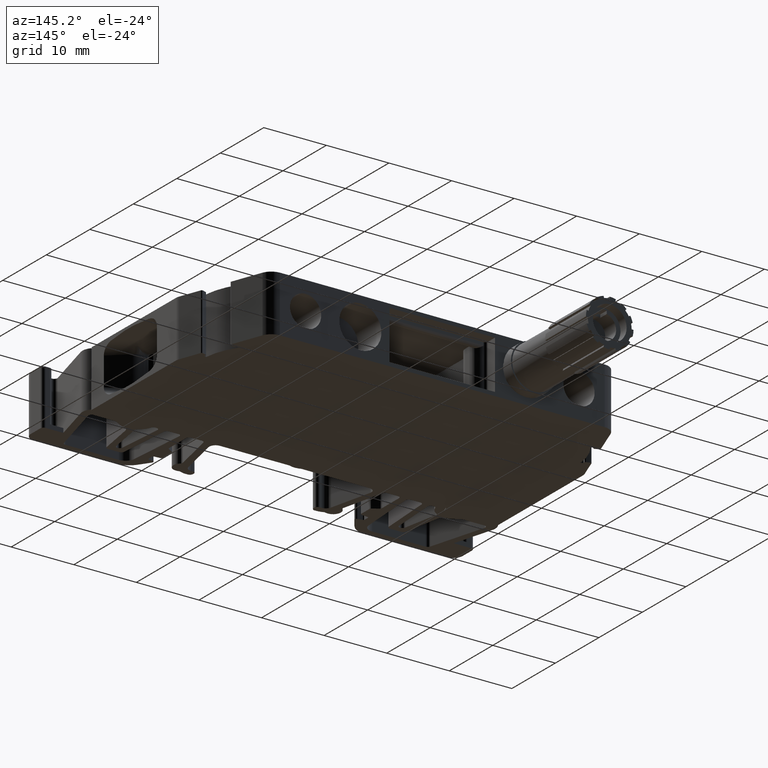
[diagram: clean part render]
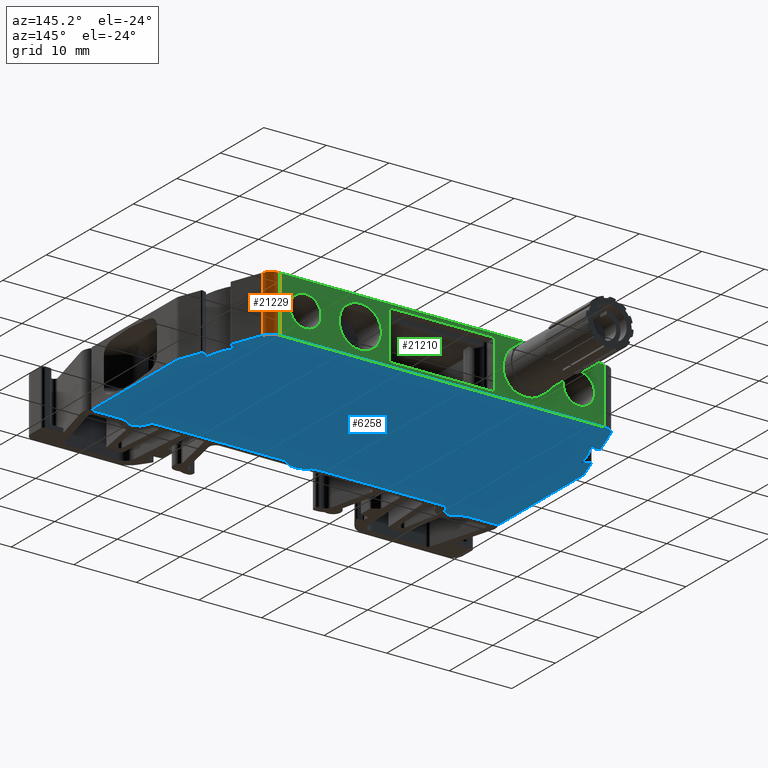
[diagram: same view with three faces highlighted in distinct colors, each labeled with its STEP entity id]
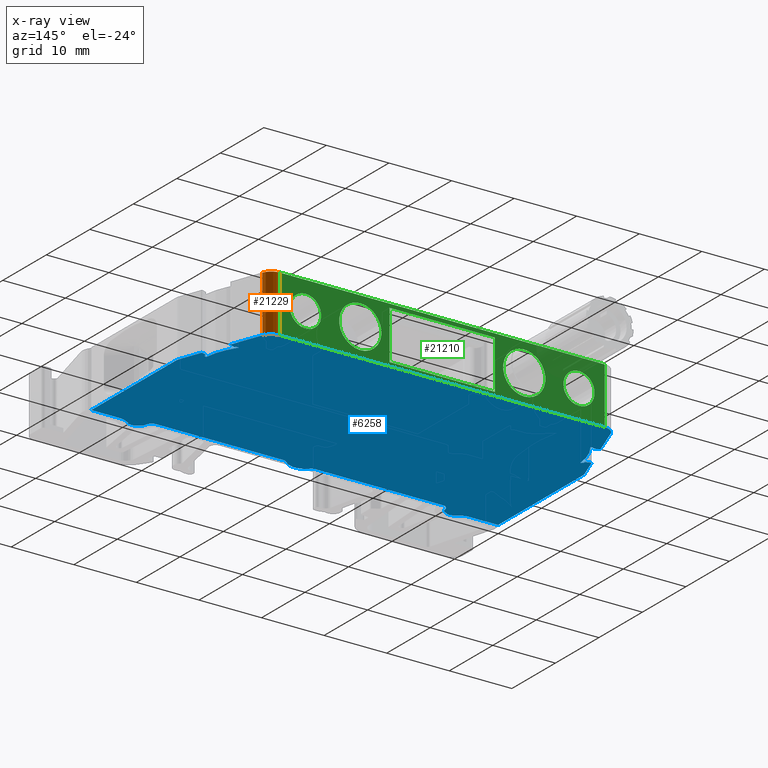
[diagram: x-ray of the same camera — body ghosted, the three highlighted faces saturated]
A machine part, auxiliary view with three faces highlighted in distinct colors.
The next image is the same camera in x-ray (body ghosted, the three faces saturated) — at least one of them is partly hidden behind the body in this view.
Their STEP definitions:

[orange] entity #21229 — the highlighted cylindrical surface (edge-blend (fillet) strip) has radius 2 mm, axis along (0, 0, 1).
#1344 = CIRCLE ( 'NONE', #1376, 1.999999999999724200 ) ;
#1376 = AXIS2_PLACEMENT_3D ( 'NONE', #12688, #12691, #12699 ) ;
#2046 = VECTOR ( 'NONE', #14994, 1000.000000000000000 ) ;
#2064 = VECTOR ( 'NONE', #14911, 1000.000000000000000 ) ;
#2979 = CIRCLE ( 'NONE', #3047, 1.999999999999724200 ) ;
#3047 = AXIS2_PLACEMENT_3D ( 'NONE', #11361, #11340, #11364 ) ;
#5365 = EDGE_LOOP ( 'NONE', ( #8138, #8134, #8133, #8155 ) ) ;
#5887 = AXIS2_PLACEMENT_3D ( 'NONE', #11031, #11057, #11058 ) ;
#7069 = EDGE_CURVE ( 'NONE', #8944, #8972, #2979, .T. ) ;
#7204 = EDGE_CURVE ( 'NONE', #8297, #8317, #1344, .T. ) ;
#7834 = EDGE_CURVE ( 'NONE', #8972, #8297, #14924, .T. ) ;
#7839 = EDGE_CURVE ( 'NONE', #8944, #8317, #14913, .T. ) ;
#8133 = ORIENTED_EDGE ( 'NONE', *, *, #7204, .T. ) ;
#8134 = ORIENTED_EDGE ( 'NONE', *, *, #7834, .T. ) ;
#8138 = ORIENTED_EDGE ( 'NONE', *, *, #7069, .T. ) ;
#8155 = ORIENTED_EDGE ( 'NONE', *, *, #7839, .F. ) ;
#8297 = VERTEX_POINT ( 'NONE', #12295 ) ;
#8317 = VERTEX_POINT ( 'NONE', #12406 ) ;
#8944 = VERTEX_POINT ( 'NONE', #13890 ) ;
#8972 = VERTEX_POINT ( 'NONE', #14081 ) ;
#11022 = CYLINDRICAL_SURFACE ( 'NONE', #5887, 1.999999999999724200 ) ;
#11031 = CARTESIAN_POINT ( 'NONE',  ( 498.1671904468869900, 141.5396878145460000, -46.85973354774110100 ) ) ;
#11044 = FACE_OUTER_BOUND ( 'NONE', #5365, .T. ) ;
#11057 = DIRECTION ( 'NONE',  ( 0.0000000000000000000, 0.0000000000000000000, 1.000000000000000000 ) ) ;
#11058 = DIRECTION ( 'NONE',  ( 1.000000000000000000, 0.0000000000000000000, 0.0000000000000000000 ) ) ;
#11340 = DIRECTION ( 'NONE',  ( -0.0000000000000000000, -0.0000000000000000000, -1.000000000000000000 ) ) ;
#11361 = CARTESIAN_POINT ( 'NONE',  ( 498.1671904468869900, 141.5396878145460000, 35.89999999999999900 ) ) ;
#11364 = DIRECTION ( 'NONE',  ( 1.000000000000000000, -4.163336342344911300E-014, 0.0000000000000000000 ) ) ;
#12295 = CARTESIAN_POINT ( 'NONE',  ( 500.0465707159509100, 142.2237417628949700, 26.89999999999999500 ) ) ;
#12406 = CARTESIAN_POINT ( 'NONE',  ( 498.1671904468869900, 143.5396878145459100, 26.89999999999999500 ) ) ;
#12688 = CARTESIAN_POINT ( 'NONE',  ( 498.1671904468869900, 141.5396878145460000, 26.89999999999999500 ) ) ;
#12691 = DIRECTION ( 'NONE',  ( 0.0000000000000000000, 0.0000000000000000000, 1.000000000000000000 ) ) ;
#12699 = DIRECTION ( 'NONE',  ( 1.000000000000000000, 0.0000000000000000000, 0.0000000000000000000 ) ) ;
#13890 = CARTESIAN_POINT ( 'NONE',  ( 498.1671904468869900, 143.5396878145460000, 35.89999999999999900 ) ) ;
#14081 = CARTESIAN_POINT ( 'NONE',  ( 500.0465707159508500, 142.2237417628949200, 35.89999999999999900 ) ) ;
#14911 = DIRECTION ( 'NONE',  ( -0.0000000000000000000, -0.0000000000000000000, -1.000000000000000000 ) ) ;
#14913 = LINE ( 'NONE', #14978, #2046 ) ;
#14924 = LINE ( 'NONE', #14942, #2064 ) ;
#14942 = CARTESIAN_POINT ( 'NONE',  ( 500.0465707159510200, 142.2237417628949700, -46.85973354774110100 ) ) ;
#14978 = CARTESIAN_POINT ( 'NONE',  ( 498.1671904468869900, 143.5396878145460000, -46.85973354774110100 ) ) ;
#14994 = DIRECTION ( 'NONE',  ( -0.0000000000000000000, 0.0000000000000000000, -1.000000000000000000 ) ) ;
#21229 = ADVANCED_FACE ( 'NONE', ( #11044 ), #11022, .T. ) ;

[blue] entity #6258 — the highlighted planar face has unit normal (0, 0, 1).
#1222 = CIRCLE ( 'NONE', #1262, 1.000000000000000900 ) ;
#1223 = AXIS2_PLACEMENT_3D ( 'NONE', #11640, #11583, #11632 ) ;
#1224 = VECTOR ( 'NONE', #11487, 1000.000000000000000 ) ;
#1227 = VECTOR ( 'NONE', #11454, 1000.000000000000100 ) ;
#1237 = VECTOR ( 'NONE', #11563, 1000.000000000000000 ) ;
#1240 = CIRCLE ( 'NONE', #1250, 1.000000000000000900 ) ;
#1245 = AXIS2_PLACEMENT_3D ( 'NONE', #11494, #11491, #11483 ) ;
#1250 = AXIS2_PLACEMENT_3D ( 'NONE', #11451, #11448, #11440 ) ;
#1251 = VECTOR ( 'NONE', #11433, 1000.000000000000100 ) ;
#1255 = CIRCLE ( 'NONE', #1245, 2.608899704346523400 ) ;
#1260 = VECTOR ( 'NONE', #11382, 1000.000000000000000 ) ;
#1262 = AXIS2_PLACEMENT_3D ( 'NONE', #11449, #11466, #11467 ) ;
#1271 = VECTOR ( 'NONE', #11514, 1000.000000000000000 ) ;
#1274 = VECTOR ( 'NONE', #11442, 1000.000000000000100 ) ;
#1276 = CIRCLE ( 'NONE', #1223, 1.000000000000000900 ) ;
#1277 = VECTOR ( 'NONE', #11432, 1000.000000000000200 ) ;
#1282 = VECTOR ( 'NONE', #11864, 1000.000000000000000 ) ;
#1284 = AXIS2_PLACEMENT_3D ( 'NONE', #12458, #12483, #12435 ) ;
#1286 = CIRCLE ( 'NONE', #1318, 0.1999999999999779700 ) ;
#1291 = AXIS2_PLACEMENT_3D ( 'NONE', #12067, #12072, #12109 ) ;
#1293 = CIRCLE ( 'NONE', #1319, 1.000000000000000900 ) ;
#1294 = CIRCLE ( 'NONE', #1291, 0.1499999999999834800 ) ;
#1297 = CIRCLE ( 'NONE', #1334, 1.499999999999890300 ) ;
#1298 = VECTOR ( 'NONE', #11873, 1000.000000000000000 ) ;
#1299 = AXIS2_PLACEMENT_3D ( 'NONE', #11667, #11730, #11746 ) ;
#1300 = VECTOR ( 'NONE', #11842, 1000.000000000000100 ) ;
#1304 = CIRCLE ( 'NONE', #1299, 2.000000000000556900 ) ;
#1307 = CIRCLE ( 'NONE', #1315, 0.2000000000001445100 ) ;
#1311 = VECTOR ( 'NONE', #12399, 1000.000000000000000 ) ;
#1314 = CIRCLE ( 'NONE', #1329, 0.1499999999997614400 ) ;
#1315 = AXIS2_PLACEMENT_3D ( 'NONE', #12141, #12106, #12121 ) ;
#1316 = VECTOR ( 'NONE', #11690, 1000.000000000000000 ) ;
#1318 = AXIS2_PLACEMENT_3D ( 'NONE', #11810, #11760, #11800 ) ;
#1319 = AXIS2_PLACEMENT_3D ( 'NONE', #11704, #11685, #11740 ) ;
#1322 = AXIS2_PLACEMENT_3D ( 'NONE', #11845, #11788, #11830 ) ;
#1326 = VECTOR ( 'NONE', #11743, 999.9999999999998900 ) ;
#1327 = CIRCLE ( 'NONE', #1328, 1.000000000000000900 ) ;
#1328 = AXIS2_PLACEMENT_3D ( 'NONE', #11957, #12034, #11929 ) ;
#1329 = AXIS2_PLACEMENT_3D ( 'NONE', #12115, #12174, #12059 ) ;
#1330 = VECTOR ( 'NONE', #12273, 1000.000000000000000 ) ;
#1331 = VECTOR ( 'NONE', #12299, 1000.000000000000100 ) ;
#1333 = CIRCLE ( 'NONE', #1322, 1.000000000000000900 ) ;
#1334 = AXIS2_PLACEMENT_3D ( 'NONE', #11627, #11577, #11539 ) ;
#1337 = CIRCLE ( 'NONE', #1284, 0.1499999999997614400 ) ;
#1340 = VECTOR ( 'NONE', #11948, 1000.000000000000000 ) ;
#1342 = AXIS2_PLACEMENT_3D ( 'NONE', #12654, #12550, #12614 ) ;
#1343 = VECTOR ( 'NONE', #12766, 1000.000000000000000 ) ;
#1344 = CIRCLE ( 'NONE', #1376, 1.999999999999724200 ) ;
#1345 = AXIS2_PLACEMENT_3D ( 'NONE', #12960, #12930, #12987 ) ;
#1356 = VECTOR ( 'NONE', #12611, 1000.000000000000100 ) ;
#1358 = CIRCLE ( 'NONE', #1365, 2.000000000000057300 ) ;
#1360 = VECTOR ( 'NONE', #12947, 1000.000000000000100 ) ;
#1361 = AXIS2_PLACEMENT_3D ( 'NONE', #12788, #12773, #12816 ) ;
#1362 = AXIS2_PLACEMENT_3D ( 'NONE', #12573, #12540, #12702 ) ;
#1365 = AXIS2_PLACEMENT_3D ( 'NONE', #12911, #12941, #12957 ) ;
#1366 = VECTOR ( 'NONE', #12927, 1000.000000000000100 ) ;
#1369 = CIRCLE ( 'NONE', #1402, 0.1999999999997559300 ) ;
#1373 = AXIS2_PLACEMENT_3D ( 'NONE', #12922, #12936, #12955 ) ;
#1374 = VECTOR ( 'NONE', #12599, 1000.000000000000200 ) ;
#1376 = AXIS2_PLACEMENT_3D ( 'NONE', #12688, #12691, #12699 ) ;
#1379 = CIRCLE ( 'NONE', #1361, 0.1999999999999779700 ) ;
#1388 = CIRCLE ( 'NONE', #1373, 10.00000000000000900 ) ;
#1390 = CIRCLE ( 'NONE', #1342, 1.499999999999945800 ) ;
#1391 = CIRCLE ( 'NONE', #1345, 0.1500000000000945000 ) ;
#1392 = CIRCLE ( 'NONE', #1362, 10.00000000000045300 ) ;
#1393 = VECTOR ( 'NONE', #12650, 999.9999999999998900 ) ;
#1394 = VECTOR ( 'NONE', #12710, 1000.000000000000100 ) ;
#1399 = VECTOR ( 'NONE', #12722, 1000.000000000000100 ) ;
#1400 = VECTOR ( 'NONE', #12966, 1000.000000000000100 ) ;
#1402 = AXIS2_PLACEMENT_3D ( 'NONE', #13043, #13111, #13087 ) ;
#2132 = AXIS2_PLACEMENT_3D ( 'NONE', #15363, #15365, #15375 ) ;
#2192 = CIRCLE ( 'NONE', #2132, 0.1999999999999779700 ) ;
#2850 = CIRCLE ( 'NONE', #2873, 1.000000000000000900 ) ;
#2869 = AXIS2_PLACEMENT_3D ( 'NONE', #3514, #3523, #3524 ) ;
#2873 = AXIS2_PLACEMENT_3D ( 'NONE', #19226, #19235, #19215 ) ;
#2915 = CIRCLE ( 'NONE', #2869, 2.608899704346523400 ) ;
#2981 = VECTOR ( 'NONE', #11289, 1000.000000000000000 ) ;
#2995 = VECTOR ( 'NONE', #11263, 1000.000000000000100 ) ;
#3011 = VECTOR ( 'NONE', #11243, 1000.000000000000000 ) ;
#3012 = VECTOR ( 'NONE', #11324, 1000.000000000000200 ) ;
#3025 = CIRCLE ( 'NONE', #3032, 2.000000000000556900 ) ;
#3028 = AXIS2_PLACEMENT_3D ( 'NONE', #11278, #11280, #11249 ) ;
#3032 = AXIS2_PLACEMENT_3D ( 'NONE', #11358, #11356, #11347 ) ;
#3050 = CIRCLE ( 'NONE', #3028, 1.000000000000000900 ) ;
#3514 = CARTESIAN_POINT ( 'NONE',  ( 472.2267414836659900, 112.1985886008790100, 26.89999999999999900 ) ) ;
#3523 = DIRECTION ( 'NONE',  ( -0.0000000000000000000, -0.0000000000000000000, 1.000000000000000000 ) ) ;
#3524 = DIRECTION ( 'NONE',  ( -1.000000000000000000, -5.319402575995370400E-015, 0.0000000000000000000 ) ) ;
#5541 = EDGE_LOOP ( 'NONE', ( #9925, #9930, #9898, #9935, #9955, #9857, #9924, #9878, #9938, #9843, #9926, #9864, #9906, #9901, #9927, #9945, #9933, #9917, #9992, #9913, #9982, #9991, #9943, #10000, #10011, #9910, #9965, #9960, #10017, #9939, #9904, #9993, #10010, #9967, #9934, #9899, #9902, #10020, #9919, #9907, #9986, #9944, #9966, #9914, #9909, #9940, #10001, #10026, #9957, #9999, #9972, #10005, #9953, #9921, #10006, #10014, #9980, #9981, #9962, #9932, #9920, #9985, #10002 ) ) ;
#6258 = ADVANCED_FACE ( 'NONE', ( #19093 ), #19109, .F. ) ;
#6999 = EDGE_CURVE ( 'NONE', #8249, #8254, #2850, .T. ) ;
#7013 = EDGE_CURVE ( 'NONE', #8254, #8260, #2915, .T. ) ;
#7045 = EDGE_CURVE ( 'NONE', #8282, #8235, #11252, .T. ) ;
#7051 = EDGE_CURVE ( 'NONE', #8252, #8276, #11245, .T. ) ;
#7052 = EDGE_CURVE ( 'NONE', #8216, #8252, #3050, .T. ) ;
#7060 = EDGE_CURVE ( 'NONE', #8180, #8182, #11317, .T. ) ;
#7067 = EDGE_CURVE ( 'NONE', #8271, #8277, #11294, .T. ) ;
#7071 = EDGE_CURVE ( 'NONE', #8296, #8215, #3025, .T. ) ;
#7088 = EDGE_CURVE ( 'NONE', #8294, #8249, #11397, .T. ) ;
#7096 = EDGE_CURVE ( 'NONE', #8264, #8289, #1240, .T. ) ;
#7097 = EDGE_CURVE ( 'NONE', #8283, #8296, #11408, .T. ) ;
#7100 = EDGE_CURVE ( 'NONE', #8215, #8264, #11455, .T. ) ;
#7103 = EDGE_CURVE ( 'NONE', #8289, #8216, #11428, .T. ) ;
#7106 = EDGE_CURVE ( 'NONE', #8276, #8294, #1222, .T. ) ;
#7109 = EDGE_CURVE ( 'NONE', #8259, #8255, #11436, .T. ) ;
#7111 = EDGE_CURVE ( 'NONE', #8239, #8236, #11503, .T. ) ;
#7116 = EDGE_CURVE ( 'NONE', #8260, #8233, #1255, .T. ) ;
#7120 = EDGE_CURVE ( 'NONE', #8237, #8239, #11523, .T. ) ;
#7121 = EDGE_CURVE ( 'NONE', #9319, #8292, #21455, .T. ) ;
#7124 = EDGE_CURVE ( 'NONE', #8233, #8180, #1276, .T. ) ;
#7133 = EDGE_CURVE ( 'NONE', #8236, #8262, #11548, .T. ) ;
#7136 = EDGE_CURVE ( 'NONE', #8277, #8209, #1297, .T. ) ;
#7139 = EDGE_CURVE ( 'NONE', #8209, #8283, #11695, .T. ) ;
#7140 = EDGE_CURVE ( 'NONE', #8248, #8282, #1293, .T. ) ;
#7142 = EDGE_CURVE ( 'NONE', #8255, #8237, #1304, .T. ) ;
#7143 = EDGE_CURVE ( 'NONE', #8250, #8297, #11707, .T. ) ;
#7151 = EDGE_CURVE ( 'NONE', #8292, #8322, #11735, .T. ) ;
#7154 = EDGE_CURVE ( 'NONE', #8235, #8259, #1333, .T. ) ;
#7155 = EDGE_CURVE ( 'NONE', #8327, #8272, #11660, .T. ) ;
#7159 = EDGE_CURVE ( 'NONE', #8322, #8271, #1286, .T. ) ;
#7160 = EDGE_CURVE ( 'NONE', #8267, #8248, #11775, .T. ) ;
#7166 = EDGE_CURVE ( 'NONE', #8182, #8267, #1327, .T. ) ;
#7167 = EDGE_CURVE ( 'NONE', #8329, #9279, #11779, .T. ) ;
#7174 = EDGE_CURVE ( 'NONE', #8269, #8321, #1314, .T. ) ;
#7176 = EDGE_CURVE ( 'NONE', #8287, #8244, #1294, .T. ) ;
#7177 = EDGE_CURVE ( 'NONE', #8353, #8337, #1307, .T. ) ;
#7182 = EDGE_CURVE ( 'NONE', #8269, #8303, #12118, .T. ) ;
#7184 = EDGE_CURVE ( 'NONE', #8275, #8257, #12296, .T. ) ;
#7191 = EDGE_CURVE ( 'NONE', #8352, #8316, #12421, .T. ) ;
#7192 = EDGE_CURVE ( 'NONE', #8352, #8272, #1337, .T. ) ;
#7194 = EDGE_CURVE ( 'NONE', #8295, #8321, #12431, .T. ) ;
#7197 = EDGE_CURVE ( 'NONE', #8246, #8327, #1392, .T. ) ;
#7198 = EDGE_CURVE ( 'NONE', #8265, #8244, #12495, .T. ) ;
#7199 = EDGE_CURVE ( 'NONE', #8262, #8288, #1390, .T. ) ;
#7201 = EDGE_CURVE ( 'NONE', #8298, #9302, #12620, .T. ) ;
#7204 = EDGE_CURVE ( 'NONE', #8297, #8317, #1344, .T. ) ;
#7206 = EDGE_CURVE ( 'NONE', #9311, #8250, #1379, .T. ) ;
#7207 = EDGE_CURVE ( 'NONE', #8317, #8291, #12785, .T. ) ;
#7209 = EDGE_CURVE ( 'NONE', #8337, #8350, #12802, .T. ) ;
#7211 = EDGE_CURVE ( 'NONE', #8316, #8329, #21486, .T. ) ;
#7212 = EDGE_CURVE ( 'NONE', #8288, #8281, #12847, .T. ) ;
#7216 = EDGE_CURVE ( 'NONE', #8291, #8341, #1358, .T. ) ;
#7218 = EDGE_CURVE ( 'NONE', #8279, #9307, #1391, .T. ) ;
#7220 = EDGE_CURVE ( 'NONE', #8303, #8265, #1388, .T. ) ;
#7221 = EDGE_CURVE ( 'NONE', #8279, #8246, #12890, .T. ) ;
#7223 = EDGE_CURVE ( 'NONE', #8341, #8353, #12876, .T. ) ;
#7225 = EDGE_CURVE ( 'NONE', #8257, #8298, #21489, .T. ) ;
#7227 = EDGE_CURVE ( 'NONE', #8287, #9277, #13005, .T. ) ;
#7230 = EDGE_CURVE ( 'NONE', #8281, #8275, #1369, .T. ) ;
#7231 = EDGE_CURVE ( 'NONE', #8350, #8295, #21496, .T. ) ;
#7905 = EDGE_CURVE ( 'NONE', #9277, #9319, #21719, .T. ) ;
#7928 = EDGE_CURVE ( 'NONE', #9279, #9311, #2192, .T. ) ;
#7931 = EDGE_CURVE ( 'NONE', #9307, #9302, #21713, .T. ) ;
#8180 = VERTEX_POINT ( 'NONE', #12045 ) ;
#8182 = VERTEX_POINT ( 'NONE', #12089 ) ;
#8209 = VERTEX_POINT ( 'NONE', #12000 ) ;
#8215 = VERTEX_POINT ( 'NONE', #12003 ) ;
#8216 = VERTEX_POINT ( 'NONE', #12015 ) ;
#8233 = VERTEX_POINT ( 'NONE', #12078 ) ;
#8235 = VERTEX_POINT ( 'NONE', #12094 ) ;
#8236 = VERTEX_POINT ( 'NONE', #12097 ) ;
#8237 = VERTEX_POINT ( 'NONE', #12100 ) ;
#8239 = VERTEX_POINT ( 'NONE', #12048 ) ;
#8244 = VERTEX_POINT ( 'NONE', #12105 ) ;
#8246 = VERTEX_POINT ( 'NONE', #12223 ) ;
#8248 = VERTEX_POINT ( 'NONE', #12230 ) ;
#8249 = VERTEX_POINT ( 'NONE', #12233 ) ;
#8250 = VERTEX_POINT ( 'NONE', #12300 ) ;
#8252 = VERTEX_POINT ( 'NONE', #12205 ) ;
#8254 = VERTEX_POINT ( 'NONE', #12181 ) ;
#8255 = VERTEX_POINT ( 'NONE', #12218 ) ;
#8257 = VERTEX_POINT ( 'NONE', #12226 ) ;
#8259 = VERTEX_POINT ( 'NONE', #12173 ) ;
#8260 = VERTEX_POINT ( 'NONE', #12305 ) ;
#8262 = VERTEX_POINT ( 'NONE', #12298 ) ;
#8264 = VERTEX_POINT ( 'NONE', #12236 ) ;
#8265 = VERTEX_POINT ( 'NONE', #12267 ) ;
#8267 = VERTEX_POINT ( 'NONE', #12243 ) ;
#8269 = VERTEX_POINT ( 'NONE', #12311 ) ;
#8271 = VERTEX_POINT ( 'NONE', #12183 ) ;
#8272 = VERTEX_POINT ( 'NONE', #12188 ) ;
#8275 = VERTEX_POINT ( 'NONE', #12292 ) ;
#8276 = VERTEX_POINT ( 'NONE', #12249 ) ;
#8277 = VERTEX_POINT ( 'NONE', #12197 ) ;
#8279 = VERTEX_POINT ( 'NONE', #12178 ) ;
#8281 = VERTEX_POINT ( 'NONE', #12215 ) ;
#8282 = VERTEX_POINT ( 'NONE', #12150 ) ;
#8283 = VERTEX_POINT ( 'NONE', #12270 ) ;
#8287 = VERTEX_POINT ( 'NONE', #12281 ) ;
#8288 = VERTEX_POINT ( 'NONE', #12221 ) ;
#8289 = VERTEX_POINT ( 'NONE', #12254 ) ;
#8291 = VERTEX_POINT ( 'NONE', #12213 ) ;
#8292 = VERTEX_POINT ( 'NONE', #12176 ) ;
#8294 = VERTEX_POINT ( 'NONE', #12257 ) ;
#8295 = VERTEX_POINT ( 'NONE', #12190 ) ;
#8296 = VERTEX_POINT ( 'NONE', #12262 ) ;
#8297 = VERTEX_POINT ( 'NONE', #12295 ) ;
#8298 = VERTEX_POINT ( 'NONE', #12242 ) ;
#8303 = VERTEX_POINT ( 'NONE', #12283 ) ;
#8316 = VERTEX_POINT ( 'NONE', #12465 ) ;
#8317 = VERTEX_POINT ( 'NONE', #12406 ) ;
#8321 = VERTEX_POINT ( 'NONE', #12438 ) ;
#8322 = VERTEX_POINT ( 'NONE', #12423 ) ;
#8327 = VERTEX_POINT ( 'NONE', #12409 ) ;
#8329 = VERTEX_POINT ( 'NONE', #12313 ) ;
#8337 = VERTEX_POINT ( 'NONE', #12379 ) ;
#8341 = VERTEX_POINT ( 'NONE', #12372 ) ;
#8350 = VERTEX_POINT ( 'NONE', #12377 ) ;
#8352 = VERTEX_POINT ( 'NONE', #12401 ) ;
#8353 = VERTEX_POINT ( 'NONE', #12411 ) ;
#9277 = VERTEX_POINT ( 'NONE', #13982 ) ;
#9279 = VERTEX_POINT ( 'NONE', #14020 ) ;
#9302 = VERTEX_POINT ( 'NONE', #14207 ) ;
#9307 = VERTEX_POINT ( 'NONE', #14116 ) ;
#9311 = VERTEX_POINT ( 'NONE', #13985 ) ;
#9319 = VERTEX_POINT ( 'NONE', #14204 ) ;
#9843 = ORIENTED_EDGE ( 'NONE', *, *, #7176, .T. ) ;
#9857 = ORIENTED_EDGE ( 'NONE', *, *, #7151, .F. ) ;
#9864 = ORIENTED_EDGE ( 'NONE', *, *, #7220, .F. ) ;
#9878 = ORIENTED_EDGE ( 'NONE', *, *, #7905, .F. ) ;
#9898 = ORIENTED_EDGE ( 'NONE', *, *, #7136, .F. ) ;
#9899 = ORIENTED_EDGE ( 'NONE', *, *, #7225, .F. ) ;
#9901 = ORIENTED_EDGE ( 'NONE', *, *, #7174, .T. ) ;
#9902 = ORIENTED_EDGE ( 'NONE', *, *, #7184, .F. ) ;
#9904 = ORIENTED_EDGE ( 'NONE', *, *, #7197, .F. ) ;
#9906 = ORIENTED_EDGE ( 'NONE', *, *, #7182, .F. ) ;
#9907 = ORIENTED_EDGE ( 'NONE', *, *, #7199, .F. ) ;
#9909 = ORIENTED_EDGE ( 'NONE', *, *, #7109, .F. ) ;
#9910 = ORIENTED_EDGE ( 'NONE', *, *, #7167, .F. ) ;
#9913 = ORIENTED_EDGE ( 'NONE', *, *, #7216, .F. ) ;
#9914 = ORIENTED_EDGE ( 'NONE', *, *, #7142, .F. ) ;
#9917 = ORIENTED_EDGE ( 'NONE', *, *, #7177, .F. ) ;
#9919 = ORIENTED_EDGE ( 'NONE', *, *, #7212, .F. ) ;
#9920 = ORIENTED_EDGE ( 'NONE', *, *, #7096, .F. ) ;
#9921 = ORIENTED_EDGE ( 'NONE', *, *, #7013, .F. ) ;
#9924 = ORIENTED_EDGE ( 'NONE', *, *, #7121, .F. ) ;
#9925 = ORIENTED_EDGE ( 'NONE', *, *, #7097, .F. ) ;
#9926 = ORIENTED_EDGE ( 'NONE', *, *, #7198, .F. ) ;
#9927 = ORIENTED_EDGE ( 'NONE', *, *, #7194, .F. ) ;
#9930 = ORIENTED_EDGE ( 'NONE', *, *, #7139, .F. ) ;
#9932 = ORIENTED_EDGE ( 'NONE', *, *, #7103, .F. ) ;
#9933 = ORIENTED_EDGE ( 'NONE', *, *, #7209, .F. ) ;
#9934 = ORIENTED_EDGE ( 'NONE', *, *, #7201, .F. ) ;
#9935 = ORIENTED_EDGE ( 'NONE', *, *, #7067, .F. ) ;
#9938 = ORIENTED_EDGE ( 'NONE', *, *, #7227, .F. ) ;
#9939 = ORIENTED_EDGE ( 'NONE', *, *, #7155, .F. ) ;
#9940 = ORIENTED_EDGE ( 'NONE', *, *, #7154, .F. ) ;
#9943 = ORIENTED_EDGE ( 'NONE', *, *, #7143, .F. ) ;
#9944 = ORIENTED_EDGE ( 'NONE', *, *, #7111, .F. ) ;
#9945 = ORIENTED_EDGE ( 'NONE', *, *, #7231, .F. ) ;
#9953 = ORIENTED_EDGE ( 'NONE', *, *, #7116, .F. ) ;
#9955 = ORIENTED_EDGE ( 'NONE', *, *, #7159, .F. ) ;
#9957 = ORIENTED_EDGE ( 'NONE', *, *, #7160, .F. ) ;
#9960 = ORIENTED_EDGE ( 'NONE', *, *, #7191, .F. ) ;
#9962 = ORIENTED_EDGE ( 'NONE', *, *, #7052, .F. ) ;
#9965 = ORIENTED_EDGE ( 'NONE', *, *, #7211, .F. ) ;
#9966 = ORIENTED_EDGE ( 'NONE', *, *, #7120, .F. ) ;
#9967 = ORIENTED_EDGE ( 'NONE', *, *, #7931, .T. ) ;
#9972 = ORIENTED_EDGE ( 'NONE', *, *, #7060, .F. ) ;
#9980 = ORIENTED_EDGE ( 'NONE', *, *, #7106, .F. ) ;
#9981 = ORIENTED_EDGE ( 'NONE', *, *, #7051, .F. ) ;
#9982 = ORIENTED_EDGE ( 'NONE', *, *, #7207, .F. ) ;
#9985 = ORIENTED_EDGE ( 'NONE', *, *, #7100, .F. ) ;
#9986 = ORIENTED_EDGE ( 'NONE', *, *, #7133, .F. ) ;
#9991 = ORIENTED_EDGE ( 'NONE', *, *, #7204, .F. ) ;
#9992 = ORIENTED_EDGE ( 'NONE', *, *, #7223, .F. ) ;
#9993 = ORIENTED_EDGE ( 'NONE', *, *, #7221, .F. ) ;
#9999 = ORIENTED_EDGE ( 'NONE', *, *, #7166, .F. ) ;
#10000 = ORIENTED_EDGE ( 'NONE', *, *, #7206, .F. ) ;
#10001 = ORIENTED_EDGE ( 'NONE', *, *, #7045, .F. ) ;
#10002 = ORIENTED_EDGE ( 'NONE', *, *, #7071, .F. ) ;
#10005 = ORIENTED_EDGE ( 'NONE', *, *, #7124, .F. ) ;
#10006 = ORIENTED_EDGE ( 'NONE', *, *, #6999, .F. ) ;
#10010 = ORIENTED_EDGE ( 'NONE', *, *, #7218, .T. ) ;
#10011 = ORIENTED_EDGE ( 'NONE', *, *, #7928, .F. ) ;
#10014 = ORIENTED_EDGE ( 'NONE', *, *, #7088, .F. ) ;
#10017 = ORIENTED_EDGE ( 'NONE', *, *, #7192, .T. ) ;
#10020 = ORIENTED_EDGE ( 'NONE', *, *, #7230, .F. ) ;
#10026 = ORIENTED_EDGE ( 'NONE', *, *, #7140, .F. ) ;
#11243 = DIRECTION ( 'NONE',  ( 0.0000000000000000000, -1.000000000000000000, -0.0000000000000000000 ) ) ;
#11245 = LINE ( 'NONE', #11261, #3011 ) ;
#11249 = DIRECTION ( 'NONE',  ( 1.000000000000000000, 0.0000000000000000000, 0.0000000000000000000 ) ) ;
#11252 = LINE ( 'NONE', #11284, #2995 ) ;
#11261 = CARTESIAN_POINT ( 'NONE',  ( 448.3254475470129700, 125.6378730676891700, 26.89999999999999900 ) ) ;
#11263 = DIRECTION ( 'NONE',  ( 0.8660254037841794700, -0.5000000000004487500, 0.0000000000000000000 ) ) ;
#11278 = CARTESIAN_POINT ( 'NONE',  ( 447.3254475470129700, 109.8985296204523900, 26.89999999999999900 ) ) ;
#11280 = DIRECTION ( 'NONE',  ( 0.0000000000000000000, 0.0000000000000000000, 1.000000000000000000 ) ) ;
#11284 = CARTESIAN_POINT ( 'NONE',  ( 496.6249713185750400, 109.0325042166679900, 26.89999999999999900 ) ) ;
#11289 = DIRECTION ( 'NONE',  ( 1.000000000000000000, 0.0000000000000000000, -0.0000000000000000000 ) ) ;
#11294 = LINE ( 'NONE', #11319, #3012 ) ;
#11311 = CARTESIAN_POINT ( 'NONE',  ( 472.5752094327940000, 110.6985886008790100, 26.89999999999999900 ) ) ;
#11317 = LINE ( 'NONE', #11311, #2981 ) ;
#11319 = CARTESIAN_POINT ( 'NONE',  ( 441.0172448106974900, 132.9193360070189800, 26.89999999999999900 ) ) ;
#11324 = DIRECTION ( 'NONE',  ( -0.3420269741745146100, -0.9396901345321370100, 0.0000000000000000000 ) ) ;
#11347 = DIRECTION ( 'NONE',  ( 1.000000000000000000, -2.775557561562118600E-014, 0.0000000000000000000 ) ) ;
#11356 = DIRECTION ( 'NONE',  ( -0.0000000000000000000, -0.0000000000000000000, -1.000000000000000000 ) ) ;
#11358 = CARTESIAN_POINT ( 'NONE',  ( 444.3793315909559900, 107.5896937618599900, 26.89999999999999900 ) ) ;
#11382 = DIRECTION ( 'NONE',  ( 1.000000000000000000, 0.0000000000000000000, -0.0000000000000000000 ) ) ;
#11386 = CARTESIAN_POINT ( 'NONE',  ( 444.3793315909559900, 109.5896937618599900, 26.89999999999999900 ) ) ;
#11387 = CARTESIAN_POINT ( 'NONE',  ( 472.5752094327940000, 110.6985886008790100, 26.89999999999999900 ) ) ;
#11397 = LINE ( 'NONE', #11387, #1260 ) ;
#11408 = LINE ( 'NONE', #11386, #1227 ) ;
#11428 = LINE ( 'NONE', #11438, #1251 ) ;
#11432 = DIRECTION ( 'NONE',  ( 0.8660240919394529600, 0.5000022721752830400, 0.0000000000000000000 ) ) ;
#11433 = DIRECTION ( 'NONE',  ( 0.8660254037841794700, 0.5000000000004487500, 0.0000000000000000000 ) ) ;
#11436 = LINE ( 'NONE', #11463, #1277 ) ;
#11438 = CARTESIAN_POINT ( 'NONE',  ( 447.3528761128570200, 108.7596649719463900, 26.89999999999999900 ) ) ;
#11440 = DIRECTION ( 'NONE',  ( 1.000000000000000000, 0.0000000000000000000, 0.0000000000000000000 ) ) ;
#11442 = DIRECTION ( 'NONE',  ( 0.8660240919395029200, -0.5000022721751964400, 0.0000000000000000000 ) ) ;
#11448 = DIRECTION ( 'NONE',  ( 0.0000000000000000000, 0.0000000000000000000, 1.000000000000000000 ) ) ;
#11449 = CARTESIAN_POINT ( 'NONE',  ( 449.3154283480994900, 109.6985886008789900, 26.89999999999999900 ) ) ;
#11451 = CARTESIAN_POINT ( 'NONE',  ( 446.8528761128570200, 109.6256903757310000, 26.89999999999999900 ) ) ;
#11454 = DIRECTION ( 'NONE',  ( 0.9999999999999996700, 2.574979927898909600E-008, 0.0000000000000000000 ) ) ;
#11455 = LINE ( 'NONE', #11469, #1274 ) ;
#11463 = CARTESIAN_POINT ( 'NONE',  ( 499.0710843154129700, 109.3217428609205900, 26.89999999999999900 ) ) ;
#11466 = DIRECTION ( 'NONE',  ( -0.0000000000000000000, -0.0000000000000000000, -1.000000000000000000 ) ) ;
#11467 = DIRECTION ( 'NONE',  ( 1.000000000000000000, 0.0000000000000000000, 0.0000000000000000000 ) ) ;
#11469 = CARTESIAN_POINT ( 'NONE',  ( 445.3793345501750300, 109.3217428609205900, 26.89999999999999900 ) ) ;
#11483 = DIRECTION ( 'NONE',  ( -1.000000000000000000, -2.127761030398148200E-014, 0.0000000000000000000 ) ) ;
#11485 = CARTESIAN_POINT ( 'NONE',  ( 472.5752094327940000, 109.5896937618604000, 26.89999999999999900 ) ) ;
#11486 = CARTESIAN_POINT ( 'NONE',  ( 504.7252043419340500, 109.5896936420172000, 26.89999999999999900 ) ) ;
#11487 = DIRECTION ( 'NONE',  ( 2.567266385272449500E-007, 0.9999999999999670300, 0.0000000000000000000 ) ) ;
#11491 = DIRECTION ( 'NONE',  ( -0.0000000000000000000, -0.0000000000000000000, 1.000000000000000000 ) ) ;
#11493 = CARTESIAN_POINT ( 'NONE',  ( 441.9869514033778700, 132.6659878826916100, 26.89999999999999900 ) ) ;
#11494 = CARTESIAN_POINT ( 'NONE',  ( 472.2236773819220200, 112.1985886008790100, 26.89999999999999900 ) ) ;
#11496 = CARTESIAN_POINT ( 'NONE',  ( 441.9226699599070100, 132.8197806153214100, 26.89999999999999100 ) ) ;
#11500 = CARTESIAN_POINT ( 'NONE',  ( 441.9869514033778200, 132.7085860683602300, 26.89999999999999500 ) ) ;
#11503 = LINE ( 'NONE', #11486, #1224 ) ;
#11507 = CARTESIAN_POINT ( 'NONE',  ( 441.9730449549832100, 132.7510726713838100, 26.89999999999999900 ) ) ;
#11512 = CARTESIAN_POINT ( 'NONE',  ( 441.8457076652765100, 132.8586343896417600, 26.90000000000001600 ) ) ;
#11514 = DIRECTION ( 'NONE',  ( 1.000000000000000000, 0.0000000000000000000, -0.0000000000000000000 ) ) ;
#11521 = CARTESIAN_POINT ( 'NONE',  ( 441.8863333666204200, 132.8458219811026600, 26.89999999999999500 ) ) ;
#11523 = LINE ( 'NONE', #11485, #1271 ) ;
#11539 = DIRECTION ( 'NONE',  ( 1.000000000000000000, 0.0000000000000000000, 0.0000000000000000000 ) ) ;
#11548 = LINE ( 'NONE', #11619, #1237 ) ;
#11563 = DIRECTION ( 'NONE',  ( -0.0000000000000000000, 1.000000000000000000, 0.0000000000000000000 ) ) ;
#11577 = DIRECTION ( 'NONE',  ( 0.0000000000000000000, 0.0000000000000000000, 1.000000000000000000 ) ) ;
#11583 = DIRECTION ( 'NONE',  ( 0.0000000000000000000, 0.0000000000000000000, -1.000000000000000000 ) ) ;
#11619 = CARTESIAN_POINT ( 'NONE',  ( 504.7252093648909900, 125.6378730676891700, 26.89999999999999900 ) ) ;
#11627 = CARTESIAN_POINT ( 'NONE',  ( 441.2252095006970200, 129.1050823633559900, 26.89999999999999500 ) ) ;
#11632 = DIRECTION ( 'NONE',  ( -1.000000000000000000, 0.0000000000000000000, 0.0000000000000000000 ) ) ;
#11640 = CARTESIAN_POINT ( 'NONE',  ( 474.8263984726329500, 109.6985886008789900, 26.89999999999999900 ) ) ;
#11660 = LINE ( 'NONE', #11699, #1282 ) ;
#11667 = CARTESIAN_POINT ( 'NONE',  ( 500.0710872746320200, 107.5896937618599900, 26.89999999999999900 ) ) ;
#11683 = CARTESIAN_POINT ( 'NONE',  ( 501.7614939674509700, 137.5121354201390000, 26.89999999999999900 ) ) ;
#11685 = DIRECTION ( 'NONE',  ( 0.0000000000000000000, 0.0000000000000000000, 1.000000000000000000 ) ) ;
#11690 = DIRECTION ( 'NONE',  ( 0.0000000000000000000, -1.000000000000000000, -0.0000000000000000000 ) ) ;
#11695 = LINE ( 'NONE', #11702, #1316 ) ;
#11698 = CARTESIAN_POINT ( 'NONE',  ( 487.8808348715629700, 118.3402177863862100, 26.90000000000002000 ) ) ;
#11699 = CARTESIAN_POINT ( 'NONE',  ( 453.5088226197319700, 120.1220686199030000, 26.89999999999999500 ) ) ;
#11702 = CARTESIAN_POINT ( 'NONE',  ( 439.7252095006969600, 125.6378730676891700, 26.89999999999999900 ) ) ;
#11704 = CARTESIAN_POINT ( 'NONE',  ( 497.1249713185750400, 109.8985296204523900, 26.89999999999999900 ) ) ;
#11707 = LINE ( 'NONE', #11683, #1326 ) ;
#11730 = DIRECTION ( 'NONE',  ( -0.0000000000000000000, -0.0000000000000000000, -1.000000000000000000 ) ) ;
#11735 = LINE ( 'NONE', #11698, #1300 ) ;
#11740 = DIRECTION ( 'NONE',  ( 1.000000000000000000, 0.0000000000000000000, 0.0000000000000000000 ) ) ;
#11743 = DIRECTION ( 'NONE',  ( -0.3420269741745279300, 0.9396901345321323500, 0.0000000000000000000 ) ) ;
#11746 = DIRECTION ( 'NONE',  ( 1.000000000000000000, 6.938893903905296000E-014, 0.0000000000000000000 ) ) ;
#11760 = DIRECTION ( 'NONE',  ( 0.0000000000000000000, 0.0000000000000000000, 1.000000000000000000 ) ) ;
#11775 = LINE ( 'NONE', #11867, #1298 ) ;
#11779 = LINE ( 'NONE', #11804, #1340 ) ;
#11788 = DIRECTION ( 'NONE',  ( 0.0000000000000000000, 0.0000000000000000000, 1.000000000000000000 ) ) ;
#11800 = DIRECTION ( 'NONE',  ( 1.000000000000000000, 0.0000000000000000000, 0.0000000000000000000 ) ) ;
#11804 = CARTESIAN_POINT ( 'NONE',  ( 452.2938725790541000, 116.8128815182080000, 26.89999999999999500 ) ) ;
#11810 = CARTESIAN_POINT ( 'NONE',  ( 441.2051828376039600, 132.8509306121840400, 26.89999999999999500 ) ) ;
#11830 = DIRECTION ( 'NONE',  ( 1.000000000000000000, 0.0000000000000000000, 0.0000000000000000000 ) ) ;
#11842 = DIRECTION ( 'NONE',  ( -0.9536955789618091200, 0.3007735737539115100, 0.0000000000000000000 ) ) ;
#11845 = CARTESIAN_POINT ( 'NONE',  ( 497.5975427527309900, 109.6256903757310000, 26.89999999999999900 ) ) ;
#11864 = DIRECTION ( 'NONE',  ( 0.9396926207852480700, 0.3420201433274829800, 0.0000000000000000000 ) ) ;
#11867 = CARTESIAN_POINT ( 'NONE',  ( 496.1249713185750400, 125.6378730676891700, 26.89999999999999900 ) ) ;
#11873 = DIRECTION ( 'NONE',  ( -0.0000000000000000000, 1.000000000000000000, 0.0000000000000000000 ) ) ;
#11929 = DIRECTION ( 'NONE',  ( 1.000000000000000000, -2.775557561562888800E-014, 0.0000000000000000000 ) ) ;
#11948 = DIRECTION ( 'NONE',  ( 0.9238659197143411800, 0.3827162949109620400, 0.0000000000000000000 ) ) ;
#11957 = CARTESIAN_POINT ( 'NONE',  ( 495.1349905174880100, 109.6985886008789900, 26.89999999999999900 ) ) ;
#12000 = CARTESIAN_POINT ( 'NONE',  ( 439.7252095006969600, 129.1050821708110200, 26.89999999999999500 ) ) ;
#12003 = CARTESIAN_POINT ( 'NONE',  ( 445.3793353427407200, 109.3217424033298100, 26.89999999999999900 ) ) ;
#12015 = CARTESIAN_POINT ( 'NONE',  ( 447.8254475470131400, 109.0325042166680700, 26.89999999999999900 ) ) ;
#12034 = DIRECTION ( 'NONE',  ( -0.0000000000000000000, -0.0000000000000000000, -1.000000000000000000 ) ) ;
#12045 = CARTESIAN_POINT ( 'NONE',  ( 474.8263984726329500, 110.6985886008790100, 26.89999999999999900 ) ) ;
#12048 = CARTESIAN_POINT ( 'NONE',  ( 504.7252043419340500, 109.5896936819649900, 26.89999999999999900 ) ) ;
#12059 = DIRECTION ( 'NONE',  ( 1.000000000000000000, 0.0000000000000000000, 0.0000000000000000000 ) ) ;
#12067 = CARTESIAN_POINT ( 'NONE',  ( 442.1032132779684500, 132.5112260477452000, 26.89999999999999500 ) ) ;
#12072 = DIRECTION ( 'NONE',  ( 0.0000000000000000000, 0.0000000000000000000, 1.000000000000000000 ) ) ;
#12078 = CARTESIAN_POINT ( 'NONE',  ( 474.1052032874143300, 110.3913205149825100, 26.89999999999999900 ) ) ;
#12089 = CARTESIAN_POINT ( 'NONE',  ( 495.1349905174880100, 110.6985886008790100, 26.89999999999999900 ) ) ;
#12094 = CARTESIAN_POINT ( 'NONE',  ( 497.0975427527307600, 108.7596649719465900, 26.89999999999999900 ) ) ;
#12097 = CARTESIAN_POINT ( 'NONE',  ( 504.7252071968338800, 109.6896936420176300, 26.89999999999999900 ) ) ;
#12100 = CARTESIAN_POINT ( 'NONE',  ( 500.0710872746320200, 109.5896937618602000, 26.89999999999999900 ) ) ;
#12105 = CARTESIAN_POINT ( 'NONE',  ( 442.0519102564696300, 132.3702721546273200, 26.89999999999999500 ) ) ;
#12106 = DIRECTION ( 'NONE',  ( 0.0000000000000000000, 0.0000000000000000000, 1.000000000000000000 ) ) ;
#12109 = DIRECTION ( 'NONE',  ( 1.000000000000000000, 0.0000000000000000000, 0.0000000000000000000 ) ) ;
#12115 = CARTESIAN_POINT ( 'NONE',  ( 443.7831173541765100, 137.1267245639772100, 26.89999999999999500 ) ) ;
#12118 = LINE ( 'NONE', #12317, #1330 ) ;
#12121 = DIRECTION ( 'NONE',  ( 1.000000000000000000, 0.0000000000000000000, 0.0000000000000000000 ) ) ;
#12141 = CARTESIAN_POINT ( 'NONE',  ( 442.8768629250429900, 137.4437300253040300, 26.89999999999999500 ) ) ;
#12150 = CARTESIAN_POINT ( 'NONE',  ( 496.6249713185747500, 109.0325042166679600, 26.89999999999999900 ) ) ;
#12173 = CARTESIAN_POINT ( 'NONE',  ( 498.0975465486374700, 108.7596671635274000, 26.89999999999999900 ) ) ;
#12174 = DIRECTION ( 'NONE',  ( 0.0000000000000000000, 0.0000000000000000000, 1.000000000000000000 ) ) ;
#12176 = CARTESIAN_POINT ( 'NONE',  ( 441.8457076652765100, 132.8586343896417600, 26.90000000000001600 ) ) ;
#12178 = CARTESIAN_POINT ( 'NONE',  ( 502.3985086091178100, 132.3702721546274300, 26.89999999999999500 ) ) ;
#12181 = CARTESIAN_POINT ( 'NONE',  ( 470.3452155781735700, 110.3913205149824400, 26.89999999999999900 ) ) ;
#12183 = CARTESIAN_POINT ( 'NONE',  ( 441.0172448106974900, 132.9193360070189800, 26.89999999999999500 ) ) ;
#12188 = CARTESIAN_POINT ( 'NONE',  ( 500.6159984899121000, 137.2676784570946300, 26.89999999999999500 ) ) ;
#12190 = CARTESIAN_POINT ( 'NONE',  ( 443.6296331466308500, 137.1436008295234500, 26.90000000000001600 ) ) ;
#12197 = CARTESIAN_POINT ( 'NONE',  ( 439.8156742988989500, 129.6181228246177000, 26.89999999999999500 ) ) ;
#12205 = CARTESIAN_POINT ( 'NONE',  ( 448.3254475470129700, 109.8985296204523900, 26.89999999999999900 ) ) ;
#12213 = CARTESIAN_POINT ( 'NONE',  ( 446.2832284187010700, 143.5396878145459700, 26.89999999999999500 ) ) ;
#12215 = CARTESIAN_POINT ( 'NONE',  ( 503.4331740548900600, 132.9193360070189600, 26.89999999999999500 ) ) ;
#12218 = CARTESIAN_POINT ( 'NONE',  ( 499.0710835228472900, 109.3217424033296400, 26.89999999999999900 ) ) ;
#12221 = CARTESIAN_POINT ( 'NONE',  ( 504.6347445666891100, 129.6181228246178100, 26.89999999999999500 ) ) ;
#12223 = CARTESIAN_POINT ( 'NONE',  ( 502.1238843569819900, 132.2703171012420900, 26.89999999999999500 ) ) ;
#12226 = CARTESIAN_POINT ( 'NONE',  ( 502.6047112003120100, 132.8586343896419100, 26.89999999999999900 ) ) ;
#12230 = CARTESIAN_POINT ( 'NONE',  ( 496.1249713185750400, 109.8985296204523900, 26.89999999999999900 ) ) ;
#12233 = CARTESIAN_POINT ( 'NONE',  ( 469.6240203929550600, 110.6985886008790100, 26.89999999999999900 ) ) ;
#12236 = CARTESIAN_POINT ( 'NONE',  ( 446.3528723169499100, 108.7596671635286300, 26.89999999999999900 ) ) ;
#12242 = CARTESIAN_POINT ( 'NONE',  ( 502.4756495528110900, 132.5968998137400700, 26.90000000000000200 ) ) ;
#12243 = CARTESIAN_POINT ( 'NONE',  ( 496.1249713185750400, 109.8397906316001400, 26.89999999999999900 ) ) ;
#12249 = CARTESIAN_POINT ( 'NONE',  ( 448.3254475470130800, 109.8397906316018700, 26.89999999999999900 ) ) ;
#12254 = CARTESIAN_POINT ( 'NONE',  ( 447.3528761128573600, 108.7596649719465800, 26.89999999999999900 ) ) ;
#12257 = CARTESIAN_POINT ( 'NONE',  ( 449.3154283480994900, 110.6985886008790100, 26.89999999999999900 ) ) ;
#12262 = CARTESIAN_POINT ( 'NONE',  ( 444.3793315652062000, 109.5896937618602700, 26.89999999999999900 ) ) ;
#12267 = CARTESIAN_POINT ( 'NONE',  ( 442.3265345086064700, 132.2703171012419700, 26.89999999999999500 ) ) ;
#12270 = CARTESIAN_POINT ( 'NONE',  ( 439.7252119470901400, 109.5896936420172900, 26.90000000000000600 ) ) ;
#12273 = DIRECTION ( 'NONE',  ( 0.9396926207857007100, -0.3420201433262393700, 0.0000000000000000000 ) ) ;
#12281 = CARTESIAN_POINT ( 'NONE',  ( 441.9622593848505400, 132.5625290692437100, 26.89999999999999500 ) ) ;
#12283 = CARTESIAN_POINT ( 'NONE',  ( 444.1090447752035900, 137.1677233500631700, 26.89999999999999500 ) ) ;
#12292 = CARTESIAN_POINT ( 'NONE',  ( 503.1850813132332400, 133.0416697279760900, 26.89999999999999500 ) ) ;
#12295 = CARTESIAN_POINT ( 'NONE',  ( 500.0465707159509100, 142.2237417628949700, 26.89999999999999500 ) ) ;
#12296 = LINE ( 'NONE', #12304, #1331 ) ;
#12298 = CARTESIAN_POINT ( 'NONE',  ( 504.7252093648909900, 129.1050821708110200, 26.89999999999999500 ) ) ;
#12299 = DIRECTION ( 'NONE',  ( -0.9536955789618815100, -0.3007735737536818000, 0.0000000000000000000 ) ) ;
#12300 = CARTESIAN_POINT ( 'NONE',  ( 501.7614939674509700, 137.5121354201388900, 26.89999999999999500 ) ) ;
#12304 = CARTESIAN_POINT ( 'NONE',  ( 456.5695839940340200, 118.3402177864010000, 26.89999999999999500 ) ) ;
#12305 = CARTESIAN_POINT ( 'NONE',  ( 472.2252094327939700, 109.5896893463734800, 26.89999999999999900 ) ) ;
#12311 = CARTESIAN_POINT ( 'NONE',  ( 443.8344203756754500, 137.2676784570948000, 26.89999999999999500 ) ) ;
#12313 = CARTESIAN_POINT ( 'NONE',  ( 501.0879123199289900, 137.0260679826899100, 26.89999999999999900 ) ) ;
#12317 = CARTESIAN_POINT ( 'NONE',  ( 490.9415962458109600, 120.1220686199900000, 26.89999999999999500 ) ) ;
#12372 = CARTESIAN_POINT ( 'NONE',  ( 444.4038481496365900, 142.2237417628950300, 26.89999999999999500 ) ) ;
#12377 = CARTESIAN_POINT ( 'NONE',  ( 443.3625065456590200, 137.0260679826900200, 26.89999999999999900 ) ) ;
#12379 = CARTESIAN_POINT ( 'NONE',  ( 442.8003196660606000, 137.2589568413610300, 26.89999999999999500 ) ) ;
#12399 = DIRECTION ( 'NONE',  ( 0.3420201433108998600, -0.9396926207912837900, 0.0000000000000000000 ) ) ;
#12401 = CARTESIAN_POINT ( 'NONE',  ( 500.8082554045290100, 137.1780275854743300, 26.89999999999999500 ) ) ;
#12406 = CARTESIAN_POINT ( 'NONE',  ( 498.1671904468869900, 143.5396878145459100, 26.89999999999999500 ) ) ;
#12409 = CARTESIAN_POINT ( 'NONE',  ( 500.3413740903850500, 137.1677233500630000, 26.89999999999999500 ) ) ;
#12411 = CARTESIAN_POINT ( 'NONE',  ( 442.6889248981365200, 137.5121354201389700, 26.89999999999999500 ) ) ;
#12415 = CARTESIAN_POINT ( 'NONE',  ( 519.4733391954899800, 85.89613133507239700, 26.89999999999999500 ) ) ;
#12421 = LINE ( 'NONE', #12415, #1311 ) ;
#12423 = CARTESIAN_POINT ( 'NONE',  ( 441.2653375523546500, 133.0416697279764500, 26.89999999999999500 ) ) ;
#12431 = LINE ( 'NONE', #12433, #1356 ) ;
#12433 = CARTESIAN_POINT ( 'NONE',  ( 424.9770796704060000, 85.89613133447529900, 26.90000000000002000 ) ) ;
#12435 = DIRECTION ( 'NONE',  ( 1.000000000000000000, 0.0000000000000000000, 0.0000000000000000000 ) ) ;
#12438 = CARTESIAN_POINT ( 'NONE',  ( 443.6421634610579800, 137.1780275854737300, 26.89999999999999500 ) ) ;
#12458 = CARTESIAN_POINT ( 'NONE',  ( 500.6673015114110400, 137.1267245639772100, 26.89999999999999500 ) ) ;
#12465 = CARTESIAN_POINT ( 'NONE',  ( 500.8207857189568100, 137.1436008295235400, 26.89999999999999900 ) ) ;
#12483 = DIRECTION ( 'NONE',  ( 0.0000000000000000000, 0.0000000000000000000, 1.000000000000000000 ) ) ;
#12495 = LINE ( 'NONE', #12509, #1393 ) ;
#12509 = CARTESIAN_POINT ( 'NONE',  ( 489.1590861265780700, 115.2246623175758100, 26.89999999999999500 ) ) ;
#12540 = DIRECTION ( 'NONE',  ( 0.0000000000000000000, 0.0000000000000000000, 1.000000000000000000 ) ) ;
#12550 = DIRECTION ( 'NONE',  ( 0.0000000000000000000, 0.0000000000000000000, 1.000000000000000000 ) ) ;
#12573 = CARTESIAN_POINT ( 'NONE',  ( 492.1603597595449700, 131.4169838742566000, 26.89999999999999500 ) ) ;
#12599 = DIRECTION ( 'NONE',  ( 0.3420201433202184600, -0.9396926207878920600, 0.0000000000000000000 ) ) ;
#12611 = DIRECTION ( 'NONE',  ( 0.3420201433023855000, 0.9396926207943827600, 0.0000000000000000000 ) ) ;
#12614 = DIRECTION ( 'NONE',  ( 1.000000000000000000, 0.0000000000000000000, 0.0000000000000000000 ) ) ;
#12620 = LINE ( 'NONE', #12665, #1374 ) ;
#12650 = DIRECTION ( 'NONE',  ( -0.9396926207859794800, 0.3420201433254737600, 0.0000000000000000000 ) ) ;
#12654 = CARTESIAN_POINT ( 'NONE',  ( 503.2252093648909900, 129.1050823633559900, 26.89999999999999500 ) ) ;
#12665 = CARTESIAN_POINT ( 'NONE',  ( 519.4733391958550300, 85.89613133573580200, 26.90000000000002000 ) ) ;
#12688 = CARTESIAN_POINT ( 'NONE',  ( 498.1671904468869900, 141.5396878145460000, 26.89999999999999500 ) ) ;
#12691 = DIRECTION ( 'NONE',  ( 0.0000000000000000000, 0.0000000000000000000, 1.000000000000000000 ) ) ;
#12699 = DIRECTION ( 'NONE',  ( 1.000000000000000000, 0.0000000000000000000, 0.0000000000000000000 ) ) ;
#12702 = DIRECTION ( 'NONE',  ( 1.000000000000000000, 0.0000000000000000000, 0.0000000000000000000 ) ) ;
#12710 = DIRECTION ( 'NONE',  ( 0.9238659197144130100, -0.3827162949107885100, 0.0000000000000000000 ) ) ;
#12712 = CARTESIAN_POINT ( 'NONE',  ( 500.8393757653096800, 137.0925250969405900, 26.89999999999999500 ) ) ;
#12716 = CARTESIAN_POINT ( 'NONE',  ( 500.8795011677386200, 137.0496844043561000, 26.89999999999999900 ) ) ;
#12719 = CARTESIAN_POINT ( 'NONE',  ( 501.0879123199289900, 137.0260679826899100, 26.89999999999999900 ) ) ;
#12722 = DIRECTION ( 'NONE',  ( -0.3420269741746541600, 0.9396901345320862700, 0.0000000000000000000 ) ) ;
#12761 = CARTESIAN_POINT ( 'NONE',  ( 504.6347445666889900, 129.6181228246176100, 26.89999999999999900 ) ) ;
#12766 = DIRECTION ( 'NONE',  ( -1.000000000000000000, -0.0000000000000000000, 0.0000000000000000000 ) ) ;
#12773 = DIRECTION ( 'NONE',  ( 0.0000000000000000000, 0.0000000000000000000, 1.000000000000000000 ) ) ;
#12779 = CARTESIAN_POINT ( 'NONE',  ( 500.8207857189568100, 137.1436008295235400, 26.89999999999999900 ) ) ;
#12785 = LINE ( 'NONE', #12799, #1343 ) ;
#12788 = CARTESIAN_POINT ( 'NONE',  ( 501.5735559405449600, 137.4437300253040300, 26.89999999999999500 ) ) ;
#12797 = CARTESIAN_POINT ( 'NONE',  ( 492.1565462865290800, 116.8128815182209900, 26.89999999999999500 ) ) ;
#12799 = CARTESIAN_POINT ( 'NONE',  ( 472.5752094327940000, 143.5396878145458300, 26.89999999999999900 ) ) ;
#12802 = LINE ( 'NONE', #12797, #1394 ) ;
#12811 = CARTESIAN_POINT ( 'NONE',  ( 500.9790030030149000, 137.0059046612581100, 26.89999999999999100 ) ) ;
#12816 = DIRECTION ( 'NONE',  ( 1.000000000000000000, 0.0000000000000000000, 0.0000000000000000000 ) ) ;
#12818 = CARTESIAN_POINT ( 'NONE',  ( 501.0376968264647000, 137.0052659515774600, 26.89999999999999500 ) ) ;
#12847 = LINE ( 'NONE', #12761, #1399 ) ;
#12872 = CARTESIAN_POINT ( 'NONE',  ( 455.2913327389849800, 115.2246623175224000, 26.89999999999999500 ) ) ;
#12876 = LINE ( 'NONE', #13010, #1366 ) ;
#12879 = CARTESIAN_POINT ( 'NONE',  ( 502.5083326829567900, 132.8040697105392100, 26.89999999999999900 ) ) ;
#12882 = CARTESIAN_POINT ( 'NONE',  ( 502.4602593050847800, 132.7065778110237800, 26.89999999999999100 ) ) ;
#12890 = LINE ( 'NONE', #12872, #1400 ) ;
#12893 = CARTESIAN_POINT ( 'NONE',  ( 502.4756495528110900, 132.5968998137400700, 26.90000000000000200 ) ) ;
#12911 = CARTESIAN_POINT ( 'NONE',  ( 446.2832284187010700, 141.5396878145460000, 26.89999999999999500 ) ) ;
#12922 = CARTESIAN_POINT ( 'NONE',  ( 452.2900591060430300, 131.4169838742566000, 26.89999999999999500 ) ) ;
#12927 = DIRECTION ( 'NONE',  ( -0.3420269741745180500, -0.9396901345321357900, 0.0000000000000000000 ) ) ;
#12930 = DIRECTION ( 'NONE',  ( 0.0000000000000000000, 0.0000000000000000000, 1.000000000000000000 ) ) ;
#12936 = DIRECTION ( 'NONE',  ( 0.0000000000000000000, 0.0000000000000000000, 1.000000000000000000 ) ) ;
#12941 = DIRECTION ( 'NONE',  ( 0.0000000000000000000, 0.0000000000000000000, 1.000000000000000000 ) ) ;
#12947 = DIRECTION ( 'NONE',  ( 0.3420201433215586100, 0.9396926207874043400, 0.0000000000000000000 ) ) ;
#12955 = DIRECTION ( 'NONE',  ( 1.000000000000000000, 0.0000000000000000000, 0.0000000000000000000 ) ) ;
#12957 = DIRECTION ( 'NONE',  ( 1.000000000000000000, 0.0000000000000000000, 0.0000000000000000000 ) ) ;
#12960 = CARTESIAN_POINT ( 'NONE',  ( 502.3472055876189300, 132.5112260477452000, 26.89999999999999500 ) ) ;
#12966 = DIRECTION ( 'NONE',  ( -0.9396926207856930400, -0.3420201433262601300, 0.0000000000000000000 ) ) ;
#12972 = CARTESIAN_POINT ( 'NONE',  ( 502.5528777795054200, 132.8422873250652600, 26.89999999999999500 ) ) ;
#12974 = CARTESIAN_POINT ( 'NONE',  ( 502.4570607343198400, 132.6479721727994300, 26.89999999999999500 ) ) ;
#12987 = DIRECTION ( 'NONE',  ( 1.000000000000000000, 0.0000000000000000000, 0.0000000000000000000 ) ) ;
#12990 = CARTESIAN_POINT ( 'NONE',  ( 502.6047112003120100, 132.8586343896419100, 26.89999999999999900 ) ) ;
#13005 = LINE ( 'NONE', #13007, #1360 ) ;
#13007 = CARTESIAN_POINT ( 'NONE',  ( 424.9770796696905100, 85.89613133582749100, 26.89999999999999500 ) ) ;
#13010 = CARTESIAN_POINT ( 'NONE',  ( 444.4038481496365300, 142.2237417628949700, 26.89999999999999900 ) ) ;
#13028 = CARTESIAN_POINT ( 'NONE',  ( 443.6110431002782700, 137.0925250969405900, 26.89999999999999500 ) ) ;
#13038 = CARTESIAN_POINT ( 'NONE',  ( 443.3625065456590200, 137.0260679826900200, 26.89999999999999900 ) ) ;
#13043 = CARTESIAN_POINT ( 'NONE',  ( 503.2452360279839900, 132.8509306121840400, 26.89999999999999500 ) ) ;
#13052 = CARTESIAN_POINT ( 'NONE',  ( 443.6296331466308500, 137.1436008295234500, 26.90000000000001600 ) ) ;
#13087 = DIRECTION ( 'NONE',  ( 1.000000000000000000, 0.0000000000000000000, 0.0000000000000000000 ) ) ;
#13111 = DIRECTION ( 'NONE',  ( 0.0000000000000000000, 0.0000000000000000000, 1.000000000000000000 ) ) ;
#13121 = CARTESIAN_POINT ( 'NONE',  ( 443.5709176978492700, 137.0496844043561300, 26.89999999999999100 ) ) ;
#13124 = CARTESIAN_POINT ( 'NONE',  ( 443.4127220391234200, 137.0052659515775100, 26.89999999999999500 ) ) ;
#13126 = CARTESIAN_POINT ( 'NONE',  ( 443.4714158625730500, 137.0059046612582300, 26.89999999999999900 ) ) ;
#13982 = CARTESIAN_POINT ( 'NONE',  ( 441.9747693127766300, 132.5968998137399500, 26.89999999999999900 ) ) ;
#13985 = CARTESIAN_POINT ( 'NONE',  ( 501.7735559405449500, 137.4437300253040300, 26.89999999999999500 ) ) ;
#14020 = CARTESIAN_POINT ( 'NONE',  ( 501.6500991995271800, 137.2589568413609700, 26.89999999999999500 ) ) ;
#14116 = CARTESIAN_POINT ( 'NONE',  ( 502.4972055876190200, 132.5112260477452000, 26.89999999999999900 ) ) ;
#14204 = CARTESIAN_POINT ( 'NONE',  ( 441.9869514033778700, 132.6659878826916100, 26.89999999999999900 ) ) ;
#14207 = CARTESIAN_POINT ( 'NONE',  ( 502.4881594807369000, 132.5625290692440200, 26.90000000000000200 ) ) ;
#15210 = CARTESIAN_POINT ( 'NONE',  ( 441.9747693127766300, 132.5968998137399500, 26.89999999999999900 ) ) ;
#15211 = CARTESIAN_POINT ( 'NONE',  ( 441.9828080746236200, 132.6189861303950000, 26.89999999999999500 ) ) ;
#15265 = CARTESIAN_POINT ( 'NONE',  ( 441.9869514033778700, 132.6659878826916100, 26.89999999999999900 ) ) ;
#15286 = CARTESIAN_POINT ( 'NONE',  ( 441.9869514033778700, 132.6424841154314400, 26.89999999999999500 ) ) ;
#15363 = CARTESIAN_POINT ( 'NONE',  ( 501.5735559405449600, 137.4437300253040300, 26.89999999999999500 ) ) ;
#15365 = DIRECTION ( 'NONE',  ( 0.0000000000000000000, 0.0000000000000000000, 1.000000000000000000 ) ) ;
#15375 = DIRECTION ( 'NONE',  ( 1.000000000000000000, 0.0000000000000000000, 0.0000000000000000000 ) ) ;
#15376 = CARTESIAN_POINT ( 'NONE',  ( 502.4972055876190200, 132.5112260477452000, 26.89999999999999900 ) ) ;
#15377 = CARTESIAN_POINT ( 'NONE',  ( 502.4881594807369000, 132.5625290692440200, 26.90000000000000200 ) ) ;
#15397 = CARTESIAN_POINT ( 'NONE',  ( 502.4940635756544200, 132.5459374224040500, 26.89999999999999900 ) ) ;
#15402 = CARTESIAN_POINT ( 'NONE',  ( 502.4970789446150500, 132.5288364152377800, 26.89999999999999900 ) ) ;
#19076 = CARTESIAN_POINT ( 'NONE',  ( 472.5752094327940000, 125.6378730676891700, 26.89999999999999900 ) ) ;
#19079 = DIRECTION ( 'NONE',  ( 0.0000000000000000000, 0.0000000000000000000, 1.000000000000000000 ) ) ;
#19093 = FACE_OUTER_BOUND ( 'NONE', #5541, .T. ) ;
#19107 = DIRECTION ( 'NONE',  ( 1.000000000000000000, 0.0000000000000000000, -0.0000000000000000000 ) ) ;
#19109 = PLANE ( 'NONE',  #19778 ) ;
#19215 = DIRECTION ( 'NONE',  ( -1.000000000000000000, 0.0000000000000000000, 0.0000000000000000000 ) ) ;
#19226 = CARTESIAN_POINT ( 'NONE',  ( 469.6240203929550600, 109.6985886008789900, 26.89999999999999900 ) ) ;
#19235 = DIRECTION ( 'NONE',  ( 0.0000000000000000000, 0.0000000000000000000, -1.000000000000000000 ) ) ;
#19778 = AXIS2_PLACEMENT_3D ( 'NONE', #19076, #19079, #19107 ) ;
#21455 = B_SPLINE_CURVE_WITH_KNOTS ( 'NONE', 3,
 ( #11493, #11500, #11507, #11496, #11521, #11512 ),
 .UNSPECIFIED., .F., .F.,
 ( 4, 2, 4 ),
 ( 0.0000000000000000000, 0.5000000000000000000, 1.000000000000000000 ),
 .UNSPECIFIED. ) ;
#21486 = B_SPLINE_CURVE_WITH_KNOTS ( 'NONE', 3,
 ( #12779, #12712, #12716, #12811, #12818, #12719 ),
 .UNSPECIFIED., .F., .F.,
 ( 4, 2, 4 ),
 ( 0.0000000000000000000, 0.5000000000000000000, 1.000000000000000000 ),
 .UNSPECIFIED. ) ;
#21489 = B_SPLINE_CURVE_WITH_KNOTS ( 'NONE', 3,
 ( #12990, #12972, #12879, #12882, #12974, #12893 ),
 .UNSPECIFIED., .F., .F.,
 ( 4, 2, 4 ),
 ( 0.0000000000000000000, 0.5000000000000000000, 1.000000000000000000 ),
 .UNSPECIFIED. ) ;
#21496 = B_SPLINE_CURVE_WITH_KNOTS ( 'NONE', 3,
 ( #13038, #13124, #13126, #13121, #13028, #13052 ),
 .UNSPECIFIED., .F., .F.,
 ( 4, 2, 4 ),
 ( 0.0000000000000000000, 0.5000000000000000000, 1.000000000000000000 ),
 .UNSPECIFIED. ) ;
#21713 = B_SPLINE_CURVE_WITH_KNOTS ( 'NONE', 3,
 ( #15376, #15402, #15397, #15377 ),
 .UNSPECIFIED., .F., .F.,
 ( 4, 4 ),
 ( 0.0000000000000000000, 1.000000000000000000 ),
 .UNSPECIFIED. ) ;
#21719 = B_SPLINE_CURVE_WITH_KNOTS ( 'NONE', 3,
 ( #15210, #15211, #15286, #15265 ),
 .UNSPECIFIED., .F., .F.,
 ( 4, 4 ),
 ( 0.0000000000000000000, 1.000000000000000000 ),
 .UNSPECIFIED. ) ;

[green] entity #21210 — the highlighted planar face has unit normal (0, 1, 0).
#1259 = VECTOR ( 'NONE', #11447, 1000.000000000000000 ) ;
#1343 = VECTOR ( 'NONE', #12766, 1000.000000000000000 ) ;
#1911 = CIRCLE ( 'NONE', #1937, 2.499997494901096100 ) ;
#1937 = AXIS2_PLACEMENT_3D ( 'NONE', #14822, #14815, #14807 ) ;
#1975 = VECTOR ( 'NONE', #14919, 1000.000000000000000 ) ;
#2017 = CIRCLE ( 'NONE', #2060, 3.375000000000003100 ) ;
#2024 = VECTOR ( 'NONE', #14795, 1000.000000000000000 ) ;
#2026 = VECTOR ( 'NONE', #14979, 1000.000000000000000 ) ;
#2046 = VECTOR ( 'NONE', #14994, 1000.000000000000000 ) ;
#2048 = CIRCLE ( 'NONE', #2084, 3.375000000000003100 ) ;
#2060 = AXIS2_PLACEMENT_3D ( 'NONE', #14823, #14801, #14830 ) ;
#2077 = VECTOR ( 'NONE', #14903, 1000.000000000000000 ) ;
#2084 = AXIS2_PLACEMENT_3D ( 'NONE', #15085, #15089, #15090 ) ;
#2092 = AXIS2_PLACEMENT_3D ( 'NONE', #15127, #15129, #15098 ) ;
#2095 = AXIS2_PLACEMENT_3D ( 'NONE', #15145, #15139, #15131 ) ;
#2102 = AXIS2_PLACEMENT_3D ( 'NONE', #15230, #15240, #15214 ) ;
#2127 = CIRCLE ( 'NONE', #2129, 3.375000000000003100 ) ;
#2129 = AXIS2_PLACEMENT_3D ( 'NONE', #15275, #15290, #15277 ) ;
#2175 = CIRCLE ( 'NONE', #2197, 2.499997494901096100 ) ;
#2179 = CIRCLE ( 'NONE', #2092, 3.375000000000003100 ) ;
#2181 = VECTOR ( 'NONE', #15104, 1000.000000000000000 ) ;
#2190 = CIRCLE ( 'NONE', #2095, 2.499997494901096100 ) ;
#2197 = AXIS2_PLACEMENT_3D ( 'NONE', #15219, #15239, #15245 ) ;
#2204 = CIRCLE ( 'NONE', #2102, 2.499997494901096100 ) ;
#5338 = EDGE_LOOP ( 'NONE', ( #8208, #8140 ) ) ;
#5344 = EDGE_LOOP ( 'NONE', ( #8173, #8172, #8156, #8165 ) ) ;
#5351 = EDGE_LOOP ( 'NONE', ( #8220, #8222 ) ) ;
#5356 = EDGE_LOOP ( 'NONE', ( #8219, #8178, #8198, #8205 ) ) ;
#5361 = EDGE_LOOP ( 'NONE', ( #8153, #8187 ) ) ;
#5366 = EDGE_LOOP ( 'NONE', ( #8194, #8212 ) ) ;
#5903 = AXIS2_PLACEMENT_3D ( 'NONE', #10939, #10936, #10942 ) ;
#7105 = EDGE_CURVE ( 'NONE', #9002, #8944, #11460, .T. ) ;
#7207 = EDGE_CURVE ( 'NONE', #8317, #8291, #12785, .T. ) ;
#7811 = EDGE_CURVE ( 'NONE', #9566, #9544, #1911, .T. ) ;
#7816 = EDGE_CURVE ( 'NONE', #9522, #9549, #2017, .T. ) ;
#7817 = EDGE_CURVE ( 'NONE', #8655, #8662, #14829, .T. ) ;
#7835 = EDGE_CURVE ( 'NONE', #8623, #8673, #14909, .T. ) ;
#7836 = EDGE_CURVE ( 'NONE', #8662, #8623, #14941, .T. ) ;
#7839 = EDGE_CURVE ( 'NONE', #8944, #8317, #14913, .T. ) ;
#7846 = EDGE_CURVE ( 'NONE', #8673, #8655, #14972, .T. ) ;
#7871 = EDGE_CURVE ( 'NONE', #9270, #9284, #2048, .T. ) ;
#7875 = EDGE_CURVE ( 'NONE', #9284, #9270, #2179, .T. ) ;
#7877 = EDGE_CURVE ( 'NONE', #9544, #9566, #2190, .T. ) ;
#7879 = EDGE_CURVE ( 'NONE', #9002, #8291, #15121, .T. ) ;
#7892 = EDGE_CURVE ( 'NONE', #9550, #9551, #2175, .T. ) ;
#7897 = EDGE_CURVE ( 'NONE', #9551, #9550, #2204, .T. ) ;
#7913 = EDGE_CURVE ( 'NONE', #9549, #9522, #2127, .T. ) ;
#8140 = ORIENTED_EDGE ( 'NONE', *, *, #7871, .T. ) ;
#8153 = ORIENTED_EDGE ( 'NONE', *, *, #7811, .T. ) ;
#8156 = ORIENTED_EDGE ( 'NONE', *, *, #7207, .T. ) ;
#8165 = ORIENTED_EDGE ( 'NONE', *, *, #7879, .F. ) ;
#8172 = ORIENTED_EDGE ( 'NONE', *, *, #7839, .T. ) ;
#8173 = ORIENTED_EDGE ( 'NONE', *, *, #7105, .T. ) ;
#8178 = ORIENTED_EDGE ( 'NONE', *, *, #7835, .T. ) ;
#8187 = ORIENTED_EDGE ( 'NONE', *, *, #7877, .T. ) ;
#8194 = ORIENTED_EDGE ( 'NONE', *, *, #7892, .T. ) ;
#8198 = ORIENTED_EDGE ( 'NONE', *, *, #7846, .T. ) ;
#8205 = ORIENTED_EDGE ( 'NONE', *, *, #7817, .T. ) ;
#8208 = ORIENTED_EDGE ( 'NONE', *, *, #7875, .T. ) ;
#8212 = ORIENTED_EDGE ( 'NONE', *, *, #7897, .T. ) ;
#8219 = ORIENTED_EDGE ( 'NONE', *, *, #7836, .T. ) ;
#8220 = ORIENTED_EDGE ( 'NONE', *, *, #7913, .T. ) ;
#8222 = ORIENTED_EDGE ( 'NONE', *, *, #7816, .T. ) ;
#8291 = VERTEX_POINT ( 'NONE', #12213 ) ;
#8317 = VERTEX_POINT ( 'NONE', #12406 ) ;
#8623 = VERTEX_POINT ( 'NONE', #13033 ) ;
#8655 = VERTEX_POINT ( 'NONE', #13264 ) ;
#8662 = VERTEX_POINT ( 'NONE', #13202 ) ;
#8673 = VERTEX_POINT ( 'NONE', #13174 ) ;
#8944 = VERTEX_POINT ( 'NONE', #13890 ) ;
#9002 = VERTEX_POINT ( 'NONE', #14030 ) ;
#9270 = VERTEX_POINT ( 'NONE', #14032 ) ;
#9284 = VERTEX_POINT ( 'NONE', #14142 ) ;
#9522 = VERTEX_POINT ( 'NONE', #14494 ) ;
#9544 = VERTEX_POINT ( 'NONE', #14502 ) ;
#9549 = VERTEX_POINT ( 'NONE', #14512 ) ;
#9550 = VERTEX_POINT ( 'NONE', #14554 ) ;
#9551 = VERTEX_POINT ( 'NONE', #14549 ) ;
#9566 = VERTEX_POINT ( 'NONE', #14542 ) ;
#10909 = FACE_BOUND ( 'NONE', #5366, .T. ) ;
#10918 = FACE_BOUND ( 'NONE', #5361, .T. ) ;
#10922 = PLANE ( 'NONE',  #5903 ) ;
#10924 = FACE_OUTER_BOUND ( 'NONE', #5344, .T. ) ;
#10928 = FACE_BOUND ( 'NONE', #5356, .T. ) ;
#10935 = FACE_BOUND ( 'NONE', #5338, .T. ) ;
#10936 = DIRECTION ( 'NONE',  ( 0.0000000000000000000, 1.000000000000000000, 0.0000000000000000000 ) ) ;
#10939 = CARTESIAN_POINT ( 'NONE',  ( 472.2252094327939700, 143.5396878145460000, -46.85973354774110100 ) ) ;
#10942 = DIRECTION ( 'NONE',  ( 0.0000000000000000000, -0.0000000000000000000, 1.000000000000000000 ) ) ;
#10948 = FACE_BOUND ( 'NONE', #5351, .T. ) ;
#11447 = DIRECTION ( 'NONE',  ( 1.000000000000000000, 0.0000000000000000000, -0.0000000000000000000 ) ) ;
#11460 = LINE ( 'NONE', #11462, #1259 ) ;
#11462 = CARTESIAN_POINT ( 'NONE',  ( 472.2252094327939700, 143.5396878145460000, 35.89999999999999900 ) ) ;
#12213 = CARTESIAN_POINT ( 'NONE',  ( 446.2832284187010700, 143.5396878145459700, 26.89999999999999500 ) ) ;
#12406 = CARTESIAN_POINT ( 'NONE',  ( 498.1671904468869900, 143.5396878145459100, 26.89999999999999500 ) ) ;
#12766 = DIRECTION ( 'NONE',  ( -1.000000000000000000, -0.0000000000000000000, 0.0000000000000000000 ) ) ;
#12785 = LINE ( 'NONE', #12799, #1343 ) ;
#12799 = CARTESIAN_POINT ( 'NONE',  ( 472.5752094327940000, 143.5396878145458300, 26.89999999999999900 ) ) ;
#13033 = CARTESIAN_POINT ( 'NONE',  ( 463.8002094327940200, 143.5396878145460000, 35.29999999999998300 ) ) ;
#13174 = CARTESIAN_POINT ( 'NONE',  ( 463.8002094327940200, 143.5396878145460000, 27.50000000000000000 ) ) ;
#13202 = CARTESIAN_POINT ( 'NONE',  ( 480.6502094327941000, 143.5396878145460000, 35.29999999999999700 ) ) ;
#13264 = CARTESIAN_POINT ( 'NONE',  ( 480.6502094327941000, 143.5396878145460000, 27.49999999999999600 ) ) ;
#13890 = CARTESIAN_POINT ( 'NONE',  ( 498.1671904468869900, 143.5396878145460000, 35.89999999999999900 ) ) ;
#14030 = CARTESIAN_POINT ( 'NONE',  ( 446.2832284187010700, 143.5396878145460300, 35.89999999999999900 ) ) ;
#14032 = CARTESIAN_POINT ( 'NONE',  ( 459.1252094327940100, 143.5396878145460000, 28.02499999999999900 ) ) ;
#14142 = CARTESIAN_POINT ( 'NONE',  ( 459.1252094327940100, 143.5396878145460000, 34.77499999999999900 ) ) ;
#14494 = CARTESIAN_POINT ( 'NONE',  ( 485.3252094327940000, 143.5396878145460000, 28.02499999999999900 ) ) ;
#14502 = CARTESIAN_POINT ( 'NONE',  ( 494.0751796304709800, 143.5396878145460000, 33.89999749490109300 ) ) ;
#14512 = CARTESIAN_POINT ( 'NONE',  ( 485.3252094327940000, 143.5396878145460000, 34.77499999999999900 ) ) ;
#14542 = CARTESIAN_POINT ( 'NONE',  ( 494.0751796304709800, 143.5396878145460000, 28.90000250509890000 ) ) ;
#14549 = CARTESIAN_POINT ( 'NONE',  ( 450.3752392351159400, 143.5396878145460000, 33.89999749490109300 ) ) ;
#14554 = CARTESIAN_POINT ( 'NONE',  ( 450.3752392351159400, 143.5396878145460000, 28.90000250509890000 ) ) ;
#14795 = DIRECTION ( 'NONE',  ( 0.0000000000000000000, -0.0000000000000000000, 1.000000000000000000 ) ) ;
#14801 = DIRECTION ( 'NONE',  ( -0.0000000000000000000, -1.000000000000000000, -0.0000000000000000000 ) ) ;
#14807 = DIRECTION ( 'NONE',  ( 0.0000000000000000000, 0.0000000000000000000, -1.000000000000000000 ) ) ;
#14815 = DIRECTION ( 'NONE',  ( 0.0000000000000000000, -1.000000000000000000, 0.0000000000000000000 ) ) ;
#14816 = CARTESIAN_POINT ( 'NONE',  ( 480.6502094327941000, 143.5396878145460000, -46.85973354774110100 ) ) ;
#14822 = CARTESIAN_POINT ( 'NONE',  ( 494.0751796304709800, 143.5396878145460000, 31.39999999999999900 ) ) ;
#14823 = CARTESIAN_POINT ( 'NONE',  ( 485.3252094327940000, 143.5396878145460000, 31.39999999999999900 ) ) ;
#14829 = LINE ( 'NONE', #14816, #2024 ) ;
#14830 = DIRECTION ( 'NONE',  ( 0.0000000000000000000, 0.0000000000000000000, 1.000000000000000000 ) ) ;
#14893 = CARTESIAN_POINT ( 'NONE',  ( 472.2252094327939700, 143.5396878145460000, 35.29999999999999700 ) ) ;
#14903 = DIRECTION ( 'NONE',  ( -1.000000000000000000, -0.0000000000000000000, 0.0000000000000000000 ) ) ;
#14909 = LINE ( 'NONE', #14912, #1975 ) ;
#14912 = CARTESIAN_POINT ( 'NONE',  ( 463.8002094327940200, 143.5396878145460000, -46.85973354774110100 ) ) ;
#14913 = LINE ( 'NONE', #14978, #2046 ) ;
#14919 = DIRECTION ( 'NONE',  ( -0.0000000000000000000, 0.0000000000000000000, -1.000000000000000000 ) ) ;
#14941 = LINE ( 'NONE', #14893, #2077 ) ;
#14972 = LINE ( 'NONE', #14982, #2026 ) ;
#14978 = CARTESIAN_POINT ( 'NONE',  ( 498.1671904468869900, 143.5396878145460000, -46.85973354774110100 ) ) ;
#14979 = DIRECTION ( 'NONE',  ( 1.000000000000000000, 0.0000000000000000000, -0.0000000000000000000 ) ) ;
#14982 = CARTESIAN_POINT ( 'NONE',  ( 472.2252094327939700, 143.5396878145460000, 27.49999999999999600 ) ) ;
#14994 = DIRECTION ( 'NONE',  ( -0.0000000000000000000, 0.0000000000000000000, -1.000000000000000000 ) ) ;
#15085 = CARTESIAN_POINT ( 'NONE',  ( 459.1252094327940100, 143.5396878145460000, 31.39999999999999900 ) ) ;
#15089 = DIRECTION ( 'NONE',  ( -0.0000000000000000000, -1.000000000000000000, -0.0000000000000000000 ) ) ;
#15090 = DIRECTION ( 'NONE',  ( 0.0000000000000000000, 0.0000000000000000000, 1.000000000000000000 ) ) ;
#15098 = DIRECTION ( 'NONE',  ( 0.0000000000000000000, 0.0000000000000000000, 1.000000000000000000 ) ) ;
#15104 = DIRECTION ( 'NONE',  ( -0.0000000000000000000, -0.0000000000000000000, -1.000000000000000000 ) ) ;
#15109 = CARTESIAN_POINT ( 'NONE',  ( 446.2832284187010700, 143.5396878145460600, -46.85973354774110100 ) ) ;
#15121 = LINE ( 'NONE', #15109, #2181 ) ;
#15127 = CARTESIAN_POINT ( 'NONE',  ( 459.1252094327940100, 143.5396878145460000, 31.39999999999999900 ) ) ;
#15129 = DIRECTION ( 'NONE',  ( -0.0000000000000000000, -1.000000000000000000, -0.0000000000000000000 ) ) ;
#15131 = DIRECTION ( 'NONE',  ( 0.0000000000000000000, 0.0000000000000000000, -1.000000000000000000 ) ) ;
#15139 = DIRECTION ( 'NONE',  ( 0.0000000000000000000, -1.000000000000000000, 0.0000000000000000000 ) ) ;
#15145 = CARTESIAN_POINT ( 'NONE',  ( 494.0751796304709800, 143.5396878145460000, 31.39999999999999900 ) ) ;
#15214 = DIRECTION ( 'NONE',  ( 0.0000000000000000000, 0.0000000000000000000, -1.000000000000000000 ) ) ;
#15219 = CARTESIAN_POINT ( 'NONE',  ( 450.3752392351159400, 143.5396878145460000, 31.39999999999999900 ) ) ;
#15230 = CARTESIAN_POINT ( 'NONE',  ( 450.3752392351159400, 143.5396878145460000, 31.39999999999999900 ) ) ;
#15239 = DIRECTION ( 'NONE',  ( 0.0000000000000000000, -1.000000000000000000, 0.0000000000000000000 ) ) ;
#15240 = DIRECTION ( 'NONE',  ( 0.0000000000000000000, -1.000000000000000000, 0.0000000000000000000 ) ) ;
#15245 = DIRECTION ( 'NONE',  ( 0.0000000000000000000, 0.0000000000000000000, -1.000000000000000000 ) ) ;
#15275 = CARTESIAN_POINT ( 'NONE',  ( 485.3252094327940000, 143.5396878145460000, 31.39999999999999900 ) ) ;
#15277 = DIRECTION ( 'NONE',  ( 0.0000000000000000000, 0.0000000000000000000, 1.000000000000000000 ) ) ;
#15290 = DIRECTION ( 'NONE',  ( -0.0000000000000000000, -1.000000000000000000, -0.0000000000000000000 ) ) ;
#21210 = ADVANCED_FACE ( 'NONE', ( #10918, #10909, #10948, #10928, #10935, #10924 ), #10922, .T. ) ;